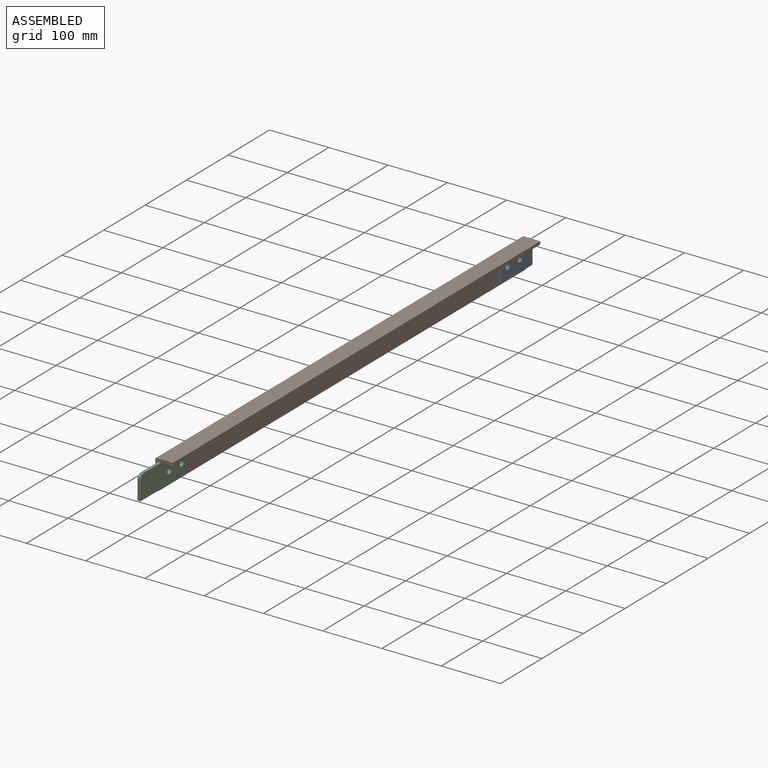
[diagram: assembled view]
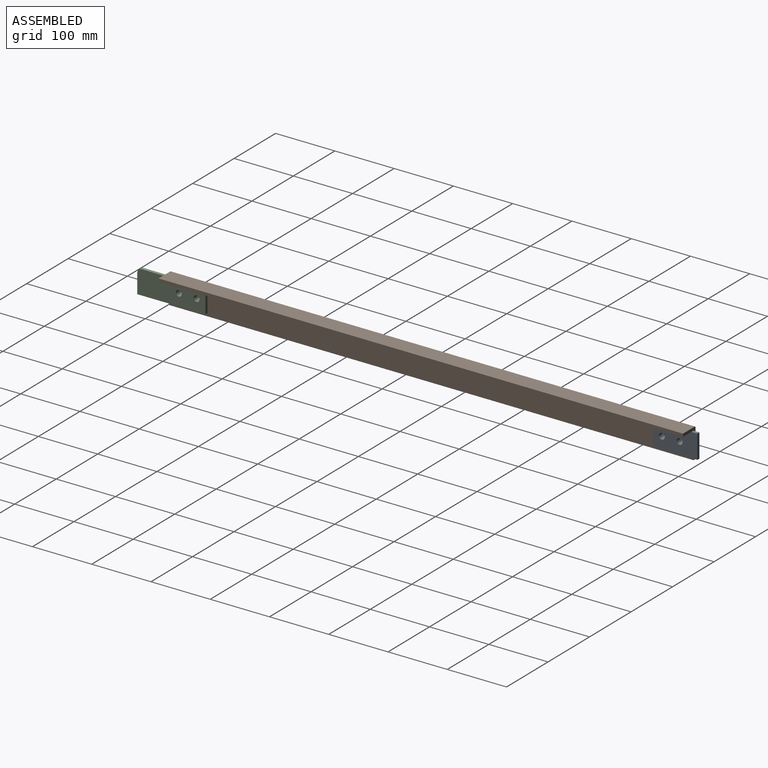
[diagram: assembled view, second angle]
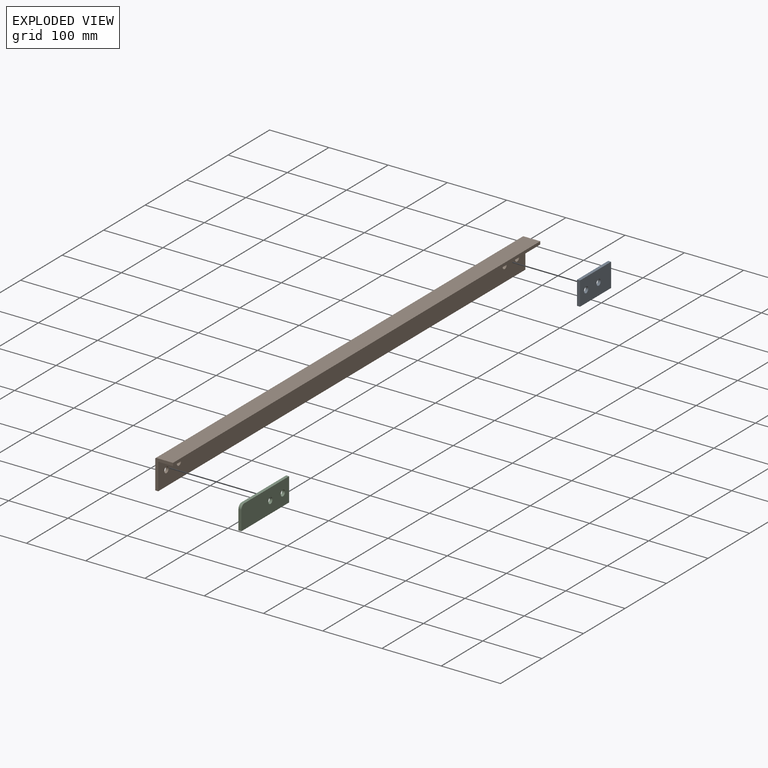
[diagram: exploded view]
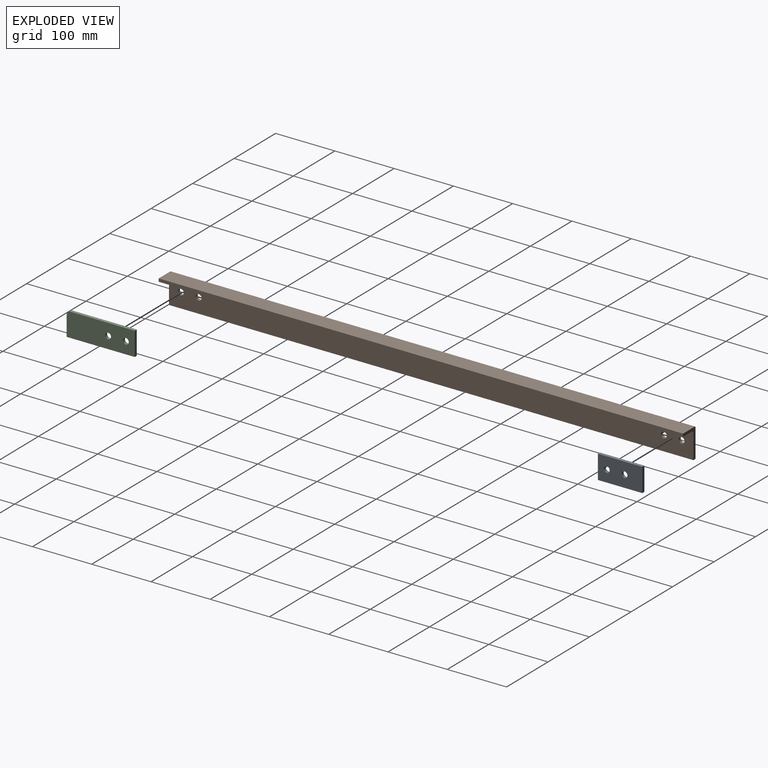
[diagram: exploded view, second angle]
ASSEMBLY  parts=3 mates=6
PART A: 8 faces, bbox 75x5x40 mm
  f0: plane 40x5mm, normal (-1,0,0), area 200mm2, adj f1,f4,f6,f7
  f1: plane 75x5mm, normal (0,0,-1), area 375mm2, adj f0,f2,f6,f7
  f2: plane 40x5mm, normal (1,0,0), area 200mm2, adj f1,f4,f6,f7
  f3: cylinder r=5mm len=10mm, axis (0,1,0), area 157.1mm2, adj f6,f7
  f4: plane 75x5mm, normal (0,0,1), area 375mm2, adj f0,f2,f6,f7
  f5: cylinder r=5mm len=10mm, axis (0,1,0), area 157.1mm2, adj f6,f7
  f6: plane 75x40mm, normal (0,-1,0), area 2842.9mm2, adj f0,f1,f2,f3,f4,f5
  f7: plane 75x40mm, normal (0,1,0), area 2842.9mm2, adj f0,f1,f2,f3,f4,f5
PART B: 14 faces, bbox 30x885x50 mm
  f0: plane 885x48mm, normal (-1,0,0), area 42165.8mm2, adj f1,f7,f8,f9,f10,f11,f12,f13
  f1: plane 885x5mm, normal (0,0,-1), area 4425mm2, adj f0,f2,f8,f9
  f2: plane 885x43mm, normal (1,0,0), area 37740.8mm2, adj f1,f3,f8,f9,f10,f11,f12,f13
  f3: cylinder r=2mm len=885mm, axis (0,1,0), area 2780.3mm2, adj f2,f4,f8,f9
  f4: plane 885x23mm, normal (0,0,-1), area 20355mm2, adj f3,f5,f8,f9
  f5: plane 885x5mm, normal (1,0,0), area 4425mm2, adj f4,f6,f8,f9
  f6: plane 885x28mm, normal (0,0,1), area 24780mm2, adj f5,f7,f8,f9
  f7: cylinder r=2mm len=885mm, axis (0,1,0), area 2780.3mm2, adj f0,f6,f8,f9
  f8: plane 50x30mm, normal (0,-1,0), area 375mm2, adj f0,f1,f2,f3,f4,f5,f6,f7
  f9: plane 50x30mm, normal (0,1,0), area 375mm2, adj f0,f1,f2,f3,f4,f5,f6,f7
  f10: cylinder r=5mm len=10mm, axis (-1,0,0), area 157.1mm2, adj f0,f2
  f11: cylinder r=5mm len=10mm, axis (-1,0,0), area 157.1mm2, adj f0,f2
  f12: cylinder r=5mm len=10mm, axis (-1,0,0), area 157.1mm2, adj f0,f2
  f13: cylinder r=5mm len=10mm, axis (-1,0,0), area 157.1mm2, adj f0,f2
PART C: 9 faces, bbox 115x5x40 mm
  f0: plane 115x5mm, normal (0,0,-1), area 575mm2, adj f1,f6,f7,f8
  f1: plane 40x5mm, normal (1,0,0), area 200mm2, adj f0,f2,f7,f8
  f2: plane 107.5x5mm, normal (0,0,1), area 537.5mm2, adj f1,f3,f7,f8
  f3: cylinder r=7.5mm len=7.5mm, axis (0,1,0), area 58.9mm2, adj f2,f6,f7,f8
  f4: cylinder r=5mm len=10mm, axis (0,1,0), area 157.1mm2, adj f7,f8
  f5: cylinder r=5mm len=10mm, axis (0,1,0), area 157.1mm2, adj f7,f8
  f6: plane 32.5x5mm, normal (-1,0,0), area 162.5mm2, adj f0,f3,f7,f8
  f7: plane 115x40mm, normal (0,-1,0), area 4430.8mm2, adj f0,f1,f2,f3,f4,f5,f6
  f8: plane 115x40mm, normal (0,1,0), area 4430.8mm2, adj f0,f1,f2,f3,f4,f5,f6
PLACE A rot(axis=(0,0,-1),90deg) t=(274.22,913.72,-19.02)mm
PLACE B rot(axis=(0.02,0.02,1),0deg) t=(264.22,903.72,-24.02)mm
PLACE C rot(axis=(0,0,1),90deg) t=(269.22,-31.28,-19.02)mm
MATE cylindrical B.f13 <-> A.f3  axis (1,0,0) through (269.22,883.72,0.98)mm
MATE cylindrical C.f5 <-> B.f11  axis (1,0,0) through (274.22,38.72,0.98)mm
MATE planar A.f6 <-> B.f2  axis (-1,0,0) through (269.22,876.64,0.98)mm
MATE cylindrical C.f4 <-> B.f12  axis (-1,0,0) through (269.22,68.72,0.98)mm
MATE planar C.f8 <-> B.f2  axis (-1,0,0) through (269.22,-31.28,-2.77)mm
MATE cylindrical A.f5 <-> B.f10  axis (1,0,0) through (274.22,853.72,0.98)mm
